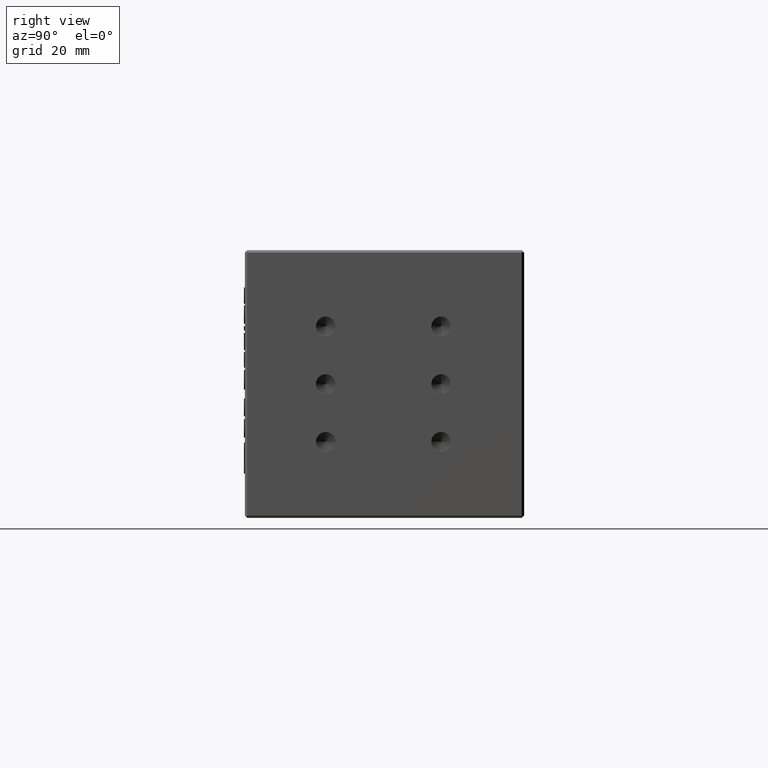
[diagram: clean part render]
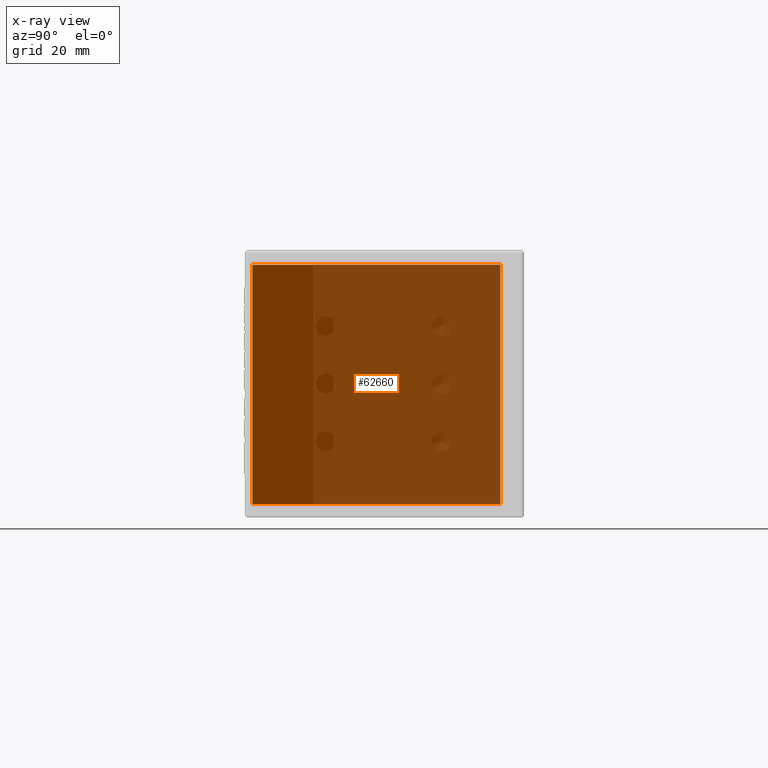
[diagram: x-ray — body ghosted, one internal face saturated and labeled with its STEP entity id]
A machine part, right view, then the same camera in x-ray: the body is ghosted and one INTERNAL B-rep face — a face not visible from any outside direction — is saturated and labeled: STEP entity #62660.
In plain terms, the highlighted planar face has unit normal (0.7071, 0.7071, -0).
Its self-contained STEP definition (entity closure, byte-faithful):
#7780 = EDGE_CURVE ( 'NONE', #14132, #50817, #22175, .T. ) ;
#8126 = VECTOR ( 'NONE', #21188, 1000.000000000000000 ) ;
#8641 = VECTOR ( 'NONE', #50904, 1000.000000000000100 ) ;
#10567 = CARTESIAN_POINT ( 'NONE',  ( 27.42575077608849900, -6.126991158258234400, 28.90000000000954800 ) ) ;
#14132 = VERTEX_POINT ( 'NONE', #61281 ) ;
#18249 = ORIENTED_EDGE ( 'NONE', *, *, #60969, .T. ) ;
#19159 = CARTESIAN_POINT ( 'NONE',  ( 0.5556930909997884700, 20.74306652683066000, 54.80000000000956100 ) ) ;
#20285 = VECTOR ( 'NONE', #35389, 1000.000000000000100 ) ;
#20858 = EDGE_LOOP ( 'NONE', ( #34446, #43043, #18249, #64993 ) ) ;
#21050 = VERTEX_POINT ( 'NONE', #62048 ) ;
#21188 = DIRECTION ( 'NONE',  ( -5.551115123125762400E-017, 5.551115123125800000E-017, -1.000000000000000000 ) ) ;
#21737 = DIRECTION ( 'NONE',  ( 0.7071067811865500200, 0.7071067811865451300, -6.162975822039154700E-033 ) ) ;
#22175 = LINE ( 'NONE', #10567, #8126 ) ;
#28767 = AXIS2_PLACEMENT_3D ( 'NONE', #53464, #21737, #58854 ) ;
#33685 = VECTOR ( 'NONE', #44225, 1000.000000000000000 ) ;
#34446 = ORIENTED_EDGE ( 'NONE', *, *, #7780, .T. ) ;
#35389 = DIRECTION ( 'NONE',  ( -0.7071067811865451300, 0.7071067811865500200, 7.850462293418873400E-017 ) ) ;
#37541 = EDGE_CURVE ( 'NONE', #50817, #21050, #60952, .T. ) ;
#38838 = CARTESIAN_POINT ( 'NONE',  ( -26.31436459408893200, 47.61312421191956200, 28.90000000000955200 ) ) ;
#39036 = EDGE_CURVE ( 'NONE', #44469, #14132, #63341, .T. ) ;
#43043 = ORIENTED_EDGE ( 'NONE', *, *, #37541, .T. ) ;
#44225 = DIRECTION ( 'NONE',  ( 5.551115123125762400E-017, -5.551115123125800000E-017, 1.000000000000000000 ) ) ;
#44469 = VERTEX_POINT ( 'NONE', #54612 ) ;
#45123 = CARTESIAN_POINT ( 'NONE',  ( 27.42575077608849900, -6.126991158258230800, 3.000000000009547000 ) ) ;
#49408 = LINE ( 'NONE', #38838, #33685 ) ;
#50817 = VERTEX_POINT ( 'NONE', #45123 ) ;
#50904 = DIRECTION ( 'NONE',  ( 0.7071067811865451300, -0.7071067811865500200, -7.850462293418873400E-017 ) ) ;
#53464 = CARTESIAN_POINT ( 'NONE',  ( 0.5556930909997870300, 20.74306652683066000, 28.90000000000954800 ) ) ;
#54612 = CARTESIAN_POINT ( 'NONE',  ( -26.31436459408893200, 47.61312421191956200, 54.80000000000956800 ) ) ;
#56358 = FACE_OUTER_BOUND ( 'NONE', #20858, .T. ) ;
#58854 = DIRECTION ( 'NONE',  ( 0.7071067811865451300, -0.7071067811865500200, -7.850462293418873400E-017 ) ) ;
#60952 = LINE ( 'NONE', #67060, #20285 ) ;
#60969 = EDGE_CURVE ( 'NONE', #21050, #44469, #49408, .T. ) ;
#61281 = CARTESIAN_POINT ( 'NONE',  ( 27.42575077608849900, -6.126991158258234400, 54.80000000000956100 ) ) ;
#62048 = CARTESIAN_POINT ( 'NONE',  ( -26.31436459408893200, 47.61312421191956900, 3.000000000009554100 ) ) ;
#62660 = ADVANCED_FACE ( 'NONE', ( #56358 ), #63942, .T. ) ;
#63341 = LINE ( 'NONE', #19159, #8641 ) ;
#63942 = PLANE ( 'NONE',  #28767 ) ;
#64993 = ORIENTED_EDGE ( 'NONE', *, *, #39036, .T. ) ;
#67060 = CARTESIAN_POINT ( 'NONE',  ( 0.5556930909997855900, 20.74306652683066300, 3.000000000009550600 ) ) ;